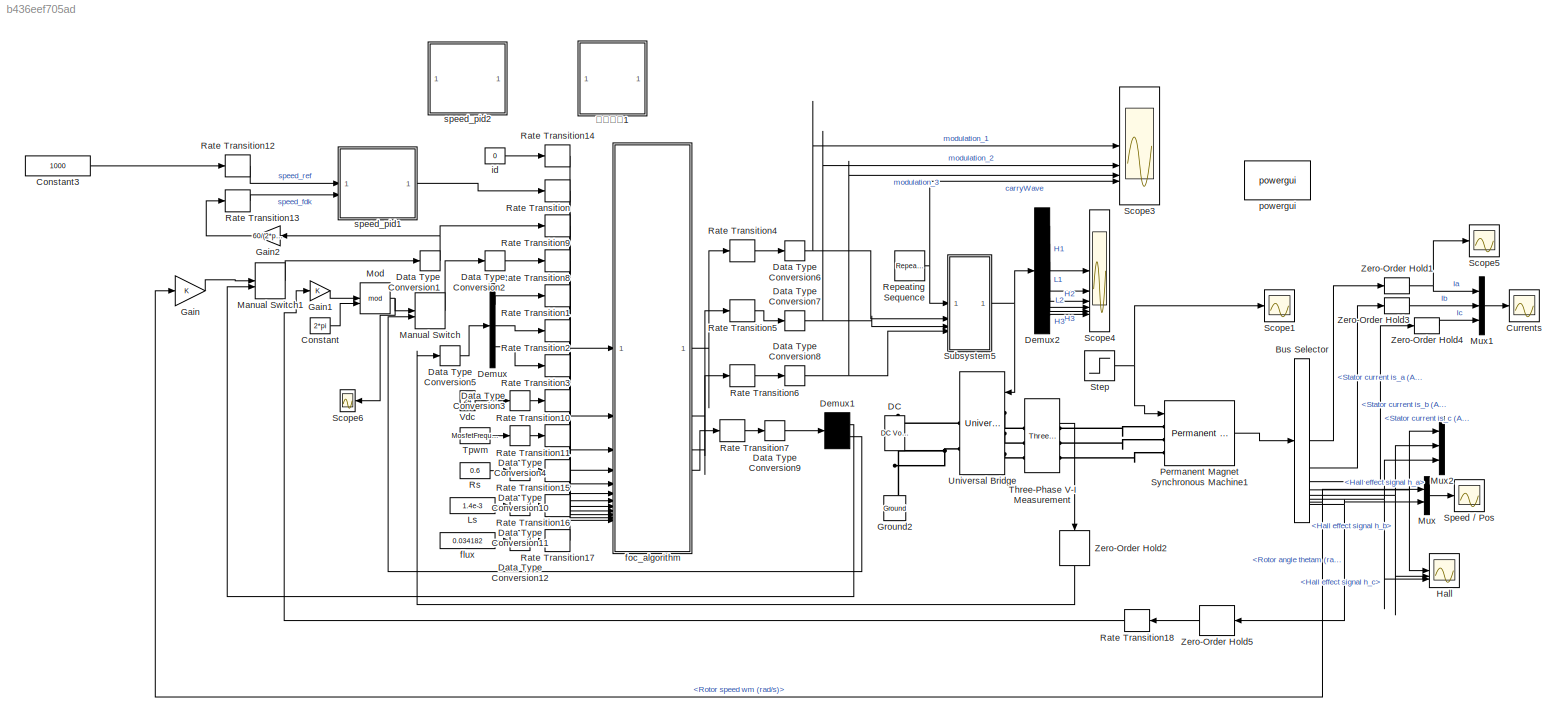
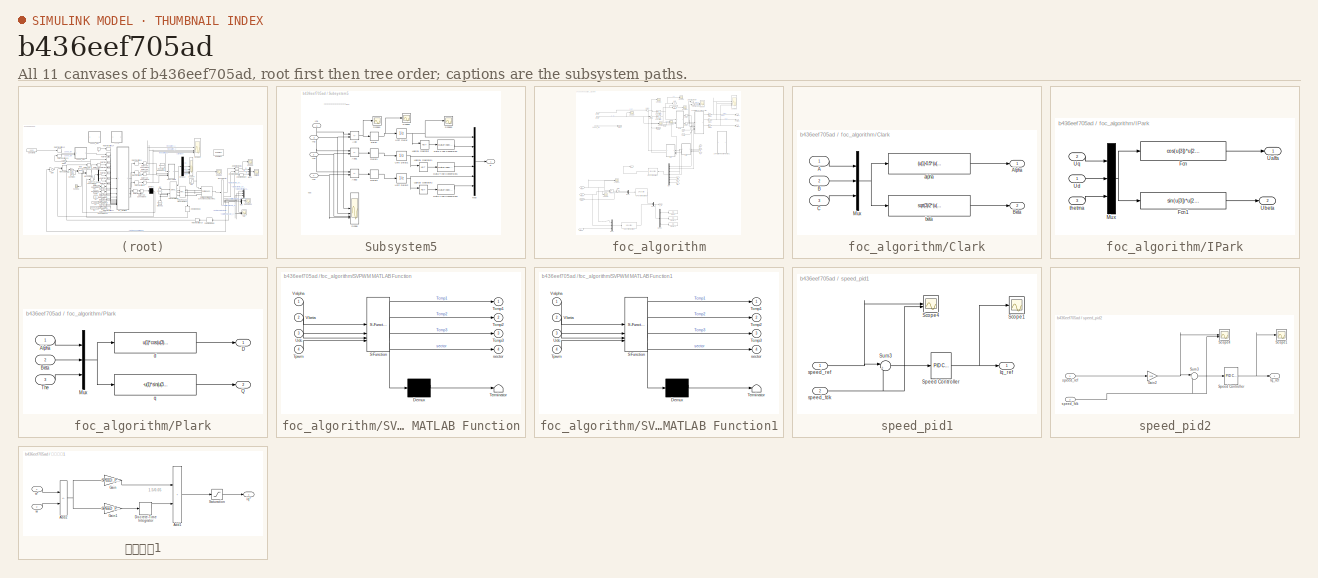
[diagram: thumbnail index - all 11 canvases of the model, root first then tree order]
MODEL slx_b436eef705ad
KIND model
CONFIG AbsTol = auto
CONFIG EnableMultiTasking = on
CONFIG FixedStep = 0.000001
CONFIG InitFcn = SPEED_PI_P=0.00006\nSPEED_PI_I=20\nSPEED_PI_UP_LIMIT = 2400.0\nSPEED_PI_LOW_LIMIT = -2400.0\nSPEED_PI_KB = 0.3\n\nD_PI_P = 10\nD_PI_I = 1200 \nD_PI_UP_LIMIT = 24.0\nD_PI_LOW_LIMIT = -24.0\nD_PI_KB = 0.5\n\n\nQ_PI_P = 15*1.0\nQ_PI_I = 2000*0.7\nQ_PI_UP_LIMIT = 24.0*3\nQ_PI_LOW_LIMIT = -24.0*3\nQ_PI_KB = 0.025\n\nMosfetFrequency=20e3\nTpwm_period=1/MosfetFrequency\nTpwm_max_count=2400
CONFIG MaxStep = auto
CONFIG MinStep = auto
CONFIG RelTol = 1e-3
CONFIG SampleTimeConstraint = Unconstrained
CONFIG SolverName = FixedStepDiscrete
CONFIG StartTime = 0.0
CONFIG StopTime = 1
BLOCK [BusSelector] Bus Selector
  OutputSignals = Stator current is_a (A),Stator current is_b (A),Stator current is_c (A),Hall effect signal h_a,Hall effect signal h_b,Hall effect signal h_c,Rotor speed wm (rad/s),Rotor angle thetam (rad)
BLOCK [Constant] Constant
  Value = 2*pi
BLOCK [Constant] Constant3
  OutDataTypeStr = single
  Value = 1000
BLOCK [Scope] Currents
  Floating = off
  NumInputPorts = 1
  ScopeSpecificationString = Simulink.scopes.TimeScopeBlockCfg('CurrentConfiguration', extmgr.ConfigurationSet(extmgr.Configuration('Core','General UI',true),extmgr.Configuration('Core','Source UI',true),extmgr.Configuration('Sources','WiredSimulink',true,'DataLoggingVariableName','ScopeData1','DataLoggingSaveFormat','StructureWithTime','DataLoggingDecimation','1','DataLoggingDecimateData',true,'DataLogging',true),extmgr.Conf...<+1839ch>
BLOCK [Reference] DC   REF=spsDCVoltageSourceLib/DC Voltage Source
  LibrarySourceBlock = sps_lib/Sources/DC Voltage Source
  NameLocation = right
  SourceBlock = spsDCVoltageSourceLib/DC Voltage Source
  SourceType = DC Voltage Source
BLOCK [DataTypeConversion] Data Type Conversion1
  OutDataTypeStr = single
  RndMeth = Floor
  SaturateOnIntegerOverflow = off
BLOCK [DataTypeConversion] Data Type Conversion10
  OutDataTypeStr = single
  RndMeth = Floor
  SaturateOnIntegerOverflow = off
BLOCK [DataTypeConversion] Data Type Conversion11
  OutDataTypeStr = single
  RndMeth = Floor
  SaturateOnIntegerOverflow = off
BLOCK [DataTypeConversion] Data Type Conversion12
  OutDataTypeStr = single
  RndMeth = Floor
  SaturateOnIntegerOverflow = off
BLOCK [DataTypeConversion] Data Type Conversion2
  OutDataTypeStr = single
  RndMeth = Floor
  SaturateOnIntegerOverflow = off
BLOCK [DataTypeConversion] Data Type Conversion3
  OutDataTypeStr = single
  RndMeth = Floor
  SaturateOnIntegerOverflow = off
BLOCK [DataTypeConversion] Data Type Conversion4
  OutDataTypeStr = single
  RndMeth = Floor
  SaturateOnIntegerOverflow = off
BLOCK [DataTypeConversion] Data Type Conversion5
  OutDataTypeStr = single
  RndMeth = Floor
  SaturateOnIntegerOverflow = off
BLOCK [DataTypeConversion] Data Type Conversion6
  OutDataTypeStr = double
  RndMeth = Floor
  SaturateOnIntegerOverflow = off
BLOCK [DataTypeConversion] Data Type Conversion7
  OutDataTypeStr = double
  RndMeth = Floor
  SaturateOnIntegerOverflow = off
BLOCK [DataTypeConversion] Data Type Conversion8
  OutDataTypeStr = double
  RndMeth = Floor
  SaturateOnIntegerOverflow = off
BLOCK [DataTypeConversion] Data Type Conversion9
  OutDataTypeStr = double
  RndMeth = Floor
  SaturateOnIntegerOverflow = off
BLOCK [Demux] Demux
  Outputs = 3
BLOCK [Demux] Demux1
  Outputs = 2
BLOCK [Demux] Demux2
  Outputs = 6
BLOCK [Gain] Gain
  OutDataTypeStr = double
BLOCK [Gain] Gain1
  OutDataTypeStr = double
BLOCK [Gain] Gain2
  Gain = 60/(2*pi)
  NameLocation = top
BLOCK [Reference] Ground2  REF=spsGroundLib/Ground
  LibrarySourceBlock = sps_lib/Utilities/Ground
  NameLocation = right
  SourceBlock = spsGroundLib/Ground
  SourceType = Ground
BLOCK [Scope] Hall
  Floating = off
  NumInputPorts = 3
  ScopeSpecificationString = Simulink.scopes.TimeScopeBlockCfg('CurrentConfiguration', extmgr.ConfigurationSet(extmgr.Configuration('Core','General UI',true),extmgr.Configuration('Core','Source UI',true),extmgr.Configuration('Sources','WiredSimulink',true,'DataLoggingVariableName','ScopeData2','DataLoggingSaveFormat','StructureWithTime','DataLoggingDecimation','1','DataLoggingDecimateData',true),extmgr.Configuration('Visuals'...<+2948ch>
BLOCK [Constant] Ls
  OutDataTypeStr = single
  Value = 1.4e-3
BLOCK [ManualSwitch] Manual Switch
BLOCK [ManualSwitch] Manual Switch1
BLOCK [Math] Mod
  Operator = mod
  SignedPower = on
BLOCK [Mux] Mux
  DisplayOption = bar
  Inputs = 2
BLOCK [Mux] Mux1
  DisplayOption = bar
  Inputs = 3
BLOCK [Mux] Mux2
  DisplayOption = bar
  Inputs = 3
BLOCK [Reference] Permanent Magnet Synchronous Machine1  REF=spsPermanentMagnetSynchronousMachineLib/Permanent Magnet
Synchronous Machine
  LibrarySourceBlock = sps_lib/Electrical Machines/Permanent Magnet\nSynchronous Machine
  SourceBlock = spsPermanentMagnetSynchronousMachineLib/Permanent Magnet\nSynchronous Machine
  SourceType = Permanent Magnet Synchronous Machine
BLOCK [RateTransition] Rate Transition
BLOCK [RateTransition] Rate Transition1
BLOCK [RateTransition] Rate Transition10
BLOCK [RateTransition] Rate Transition11
BLOCK [RateTransition] Rate Transition12
BLOCK [RateTransition] Rate Transition13
BLOCK [RateTransition] Rate Transition14
BLOCK [RateTransition] Rate Transition15
BLOCK [RateTransition] Rate Transition16
BLOCK [RateTransition] Rate Transition17
BLOCK [RateTransition] Rate Transition18
  NameLocation = top
BLOCK [RateTransition] Rate Transition2
BLOCK [RateTransition] Rate Transition3
BLOCK [RateTransition] Rate Transition4
BLOCK [RateTransition] Rate Transition5
BLOCK [RateTransition] Rate Transition6
BLOCK [RateTransition] Rate Transition7
BLOCK [RateTransition] Rate Transition8
BLOCK [RateTransition] Rate Transition9
BLOCK [Reference] Repeating Sequence  REF=simulink/Sources/Repeating
Sequence
  SourceBlock = simulink/Sources/Repeating\nSequence
  SourceType = Repeating table
BLOCK [Constant] Rs
  OutDataTypeStr = single
  Value = 0.6
BLOCK [Scope] Scope1
  Floating = off
  NumInputPorts = 1
  ScopeSpecificationString = Simulink.scopes.TimeScopeBlockCfg('CurrentConfiguration', extmgr.ConfigurationSet(extmgr.Configuration('Core','General UI',true),extmgr.Configuration('Core','Source UI',true),extmgr.Configuration('Sources','WiredSimulink',true,'DataLoggingVariableName','ScopeData2'),extmgr.Configuration('Visuals','Time Domain',true,'SerializedDisplays',{struct('MinYLimReal','-0.00002','MaxYLimReal','0.00017','YLab...<+1392ch>
BLOCK [Scope] Scope3
  Floating = off
  NumInputPorts = 4
  ScopeSpecificationString = Simulink.scopes.TimeScopeBlockCfg('CurrentConfiguration', extmgr.ConfigurationSet(extmgr.Configuration('Core','General UI',true),extmgr.Configuration('Core','Source UI',true),extmgr.Configuration('Sources','WiredSimulink',true,'DataLoggingVariableName','ScopeData1'),extmgr.Configuration('Visuals','Time Domain',true,'SerializedDisplays',{struct('MinYLimReal','124.9226','MaxYLimReal','1090.86687','Y...<+1714ch>
BLOCK [Scope] Scope4
  Floating = off
  NumInputPorts = 6
  ScopeSpecificationString = Simulink.scopes.TimeScopeBlockCfg('CurrentConfiguration', extmgr.ConfigurationSet(extmgr.Configuration('Core','General UI',true),extmgr.Configuration('Core','Source UI',true),extmgr.Configuration('Sources','WiredSimulink',true,'DataLoggingVariableName','ScopeData2'),extmgr.Configuration('Visuals','Time Domain',true,'SerializedDisplays',{struct('MinYLimReal','-0.125','MaxYLimReal','1.125','YLabelRe...<+5498ch>
BLOCK [Scope] Scope5
  Floating = off
  NumInputPorts = 1
  ScopeSpecificationString = Simulink.scopes.TimeScopeBlockCfg('CurrentConfiguration', extmgr.ConfigurationSet(extmgr.Configuration('Core','General UI',true),extmgr.Configuration('Core','Source UI',true),extmgr.Configuration('Sources','WiredSimulink',true,'DataLoggingVariableName','ScopeData3','DataLogging',true,'DataLoggingSaveFormat','StructureWithTime'),extmgr.Configuration('Visuals','Time Domain',true,'SerializedDisplays'...<+1597ch>
BLOCK [Scope] Scope6
  Floating = off
  NameLocation = top
  NumInputPorts = 1
  ScopeSpecificationString = Simulink.scopes.TimeScopeBlockCfg('CurrentConfiguration', extmgr.ConfigurationSet(extmgr.Configuration('Core','General UI',true),extmgr.Configuration('Core','Source UI',true),extmgr.Configuration('Sources','WiredSimulink',true,'DataLoggingVariableName','ScopeData5'),extmgr.Configuration('Visuals','Time Domain',true,'SerializedDisplays',{struct('MinYLimReal','-0.78539','MaxYLimReal','7.06855','YLab...<+1513ch>
BLOCK [Scope] Speed // Pos
  Floating = off
  NumInputPorts = 1
  ScopeSpecificationString = Simulink.scopes.TimeScopeBlockCfg('CurrentConfiguration', extmgr.ConfigurationSet(extmgr.Configuration('Core','General UI',true),extmgr.Configuration('Core','Source UI',true),extmgr.Configuration('Sources','WiredSimulink',true,'DataLoggingSaveFormat','StructureWithTime','DataLoggingDecimation','1','DataLoggingDecimateData',true),extmgr.Configuration('Visuals','Time Domain',true,'SerializedDisplays...<+1778ch>
BLOCK [Step] Step
  After = 0
  SampleTime = 0
  Time = 0
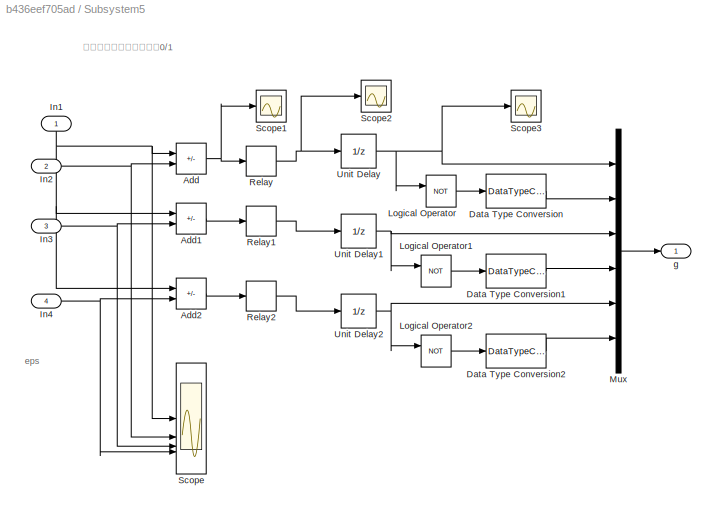
BLOCK [SubSystem] Subsystem5
BLOCK [Sum] Subsystem5/Add
  IconShape = rectangular
  Inputs = +-
BLOCK [Sum] Subsystem5/Add1
  IconShape = rectangular
  Inputs = +-
BLOCK [Sum] Subsystem5/Add2
  IconShape = rectangular
  Inputs = +-
BLOCK [DataTypeConversion] Subsystem5/Data Type Conversion
  OutDataTypeStr = double
  RndMeth = Floor
  SaturateOnIntegerOverflow = off
BLOCK [DataTypeConversion] Subsystem5/Data Type Conversion1
  OutDataTypeStr = double
  RndMeth = Floor
  SaturateOnIntegerOverflow = off
BLOCK [DataTypeConversion] Subsystem5/Data Type Conversion2
  OutDataTypeStr = double
  RndMeth = Floor
  SaturateOnIntegerOverflow = off
BLOCK [Inport] Subsystem5/In1
  NameLocation = right
BLOCK [Inport] Subsystem5/In2
  Port = 2
BLOCK [Inport] Subsystem5/In3
  Port = 3
BLOCK [Inport] Subsystem5/In4
  Port = 4
BLOCK [Logic] Subsystem5/Logical Operator
  AllPortsSameDT = off
  Operator = NOT
  OutDataTypeStr = boolean
BLOCK [Logic] Subsystem5/Logical Operator1
  AllPortsSameDT = off
  Operator = NOT
  OutDataTypeStr = boolean
BLOCK [Logic] Subsystem5/Logical Operator2
  AllPortsSameDT = off
  Operator = NOT
  OutDataTypeStr = boolean
BLOCK [Mux] Subsystem5/Mux
  DisplayOption = bar
  Inputs = 6
BLOCK [Relay] Subsystem5/Relay
  OffSwitchValue = -eps
BLOCK [Relay] Subsystem5/Relay1
  OffSwitchValue = -eps
BLOCK [Relay] Subsystem5/Relay2
  OffSwitchValue = -eps
BLOCK [Scope] Subsystem5/Scope
  Floating = off
  NumInputPorts = 4
  ScopeSpecificationString = Simulink.scopes.TimeScopeBlockCfg('CurrentConfiguration', extmgr.ConfigurationSet(extmgr.Configuration('Core','General UI',true),extmgr.Configuration('Core','Source UI',true),extmgr.Configuration('Sources','WiredSimulink',true,'DataLoggingVariableName','ScopeData3'),extmgr.Configuration('Visuals','Time Domain',true,'SerializedDisplays',{struct('MinYLimReal','-1125.00000','MaxYLimReal','10125.00000...<+1963ch>
BLOCK [Scope] Subsystem5/Scope1
  Floating = off
  NumInputPorts = 1
  ScopeSpecificationString = Simulink.scopes.TimeScopeBlockCfg('CurrentConfiguration', extmgr.ConfigurationSet(extmgr.Configuration('Core','General UI',true),extmgr.Configuration('Core','Source UI',true),extmgr.Configuration('Sources','WiredSimulink',true,'DataLoggingVariableName','ScopeData5'),extmgr.Configuration('Visuals','Time Domain',true,'SerializedDisplays',{struct('MinYLimReal','-7920.87396','MaxYLimReal','10880.09711...<+1584ch>
BLOCK [Scope] Subsystem5/Scope2
  Floating = off
  NumInputPorts = 1
  ScopeSpecificationString = Simulink.scopes.TimeScopeBlockCfg('CurrentConfiguration', extmgr.ConfigurationSet(extmgr.Configuration('Core','General UI',true),extmgr.Configuration('Core','Source UI',true),extmgr.Configuration('Sources','WiredSimulink',true,'DataLoggingVariableName','ScopeData6'),extmgr.Configuration('Visuals','Time Domain',true,'SerializedDisplays',{struct('MinYLimReal','-0.125','MaxYLimReal','1.125','YLabelRe...<+1517ch>
BLOCK [Scope] Subsystem5/Scope3
  Floating = off
  NumInputPorts = 1
  ScopeSpecificationString = Simulink.scopes.TimeScopeBlockCfg('CurrentConfiguration', extmgr.ConfigurationSet(extmgr.Configuration('Core','General UI',true),extmgr.Configuration('Core','Source UI',true),extmgr.Configuration('Sources','WiredSimulink',true,'DataLoggingVariableName','ScopeData7'),extmgr.Configuration('Visuals','Time Domain',true),extmgr.Configuration('Tools','Plot Navigation',true),extmgr.Configuration('Tools',...<+40ch>
BLOCK [UnitDelay] Subsystem5/Unit Delay
  HasFrameUpgradeWarning = on
  SampleTime = -1
BLOCK [UnitDelay] Subsystem5/Unit Delay1
  HasFrameUpgradeWarning = on
  SampleTime = -1
BLOCK [UnitDelay] Subsystem5/Unit Delay2
  HasFrameUpgradeWarning = on
  SampleTime = -1
BLOCK [Outport] Subsystem5/g
  VectorParamsAs1DForOutWhenUnconnected = off
BLOCK [Reference] Three-Phase V-I Measurement  REF=spsThreePhaseVIMeasurementLib/Three-Phase
V-I Measurement
  LibrarySourceBlock = sps_lib/Sensors and Measurements/Three-Phase\nV-I Measurement
  SourceBlock = spsThreePhaseVIMeasurementLib/Three-Phase\nV-I Measurement
  SourceType = Three-Phase VI Measurement
BLOCK [Constant] Tpwm
  Value = MosfetFrequency
BLOCK [Reference] Universal Bridge  REF=spsUniversalBridgeLib/Universal Bridge
  LibrarySourceBlock = sps_lib/Power Electronics/Universal Bridge
  NameLocation = top
  SourceBlock = spsUniversalBridgeLib/Universal Bridge
  SourceType = Universal Bridge
BLOCK [Constant] Vdc
  Value = 24
BLOCK [ZeroOrderHold] Zero-Order Hold1
  SampleTime = Tpwm_period
BLOCK [ZeroOrderHold] Zero-Order Hold2
  NameLocation = left
  SampleTime = Tpwm_period
BLOCK [ZeroOrderHold] Zero-Order Hold3
  SampleTime = Tpwm_period
BLOCK [ZeroOrderHold] Zero-Order Hold4
  SampleTime = Tpwm_period
BLOCK [ZeroOrderHold] Zero-Order Hold5
  NameLocation = top
  SampleTime = Tpwm_period
BLOCK [Constant] flux
  OutDataTypeStr = single
  Value = 0.034182
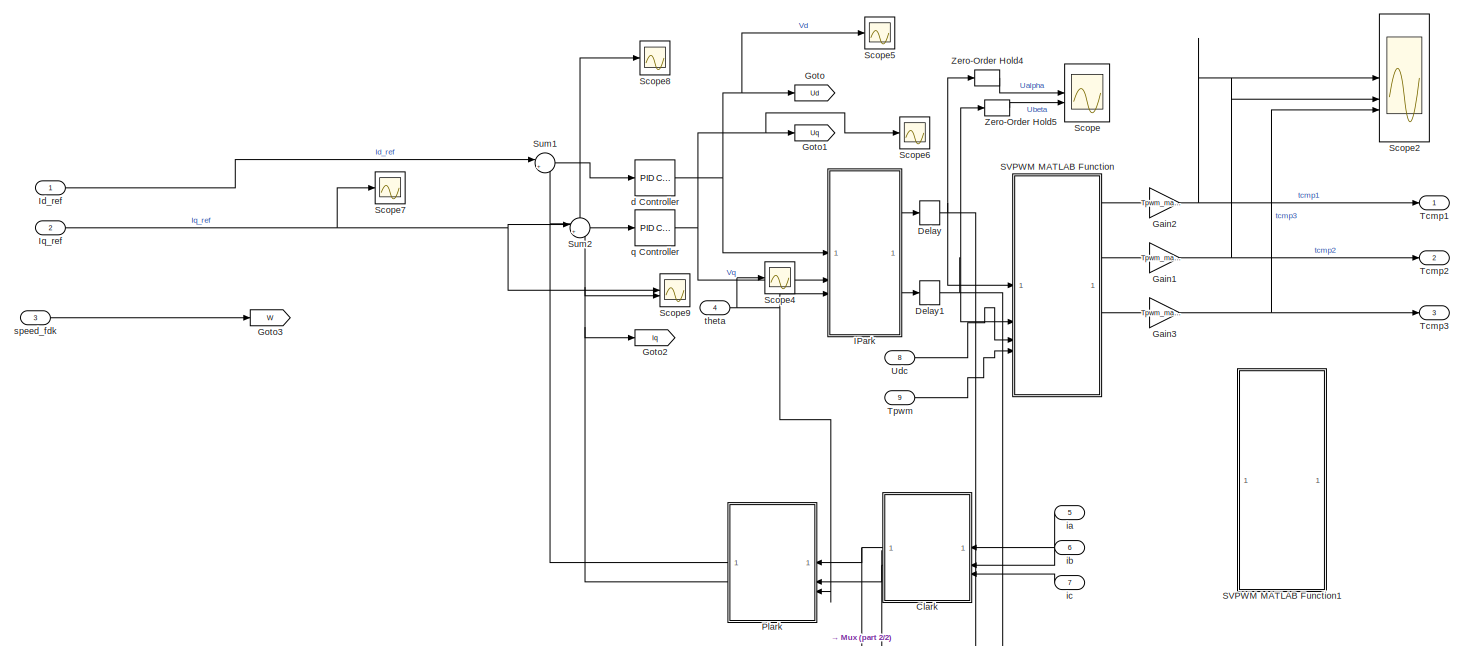
[diagram: foc_algorithm - part 1/2, full width, top band]
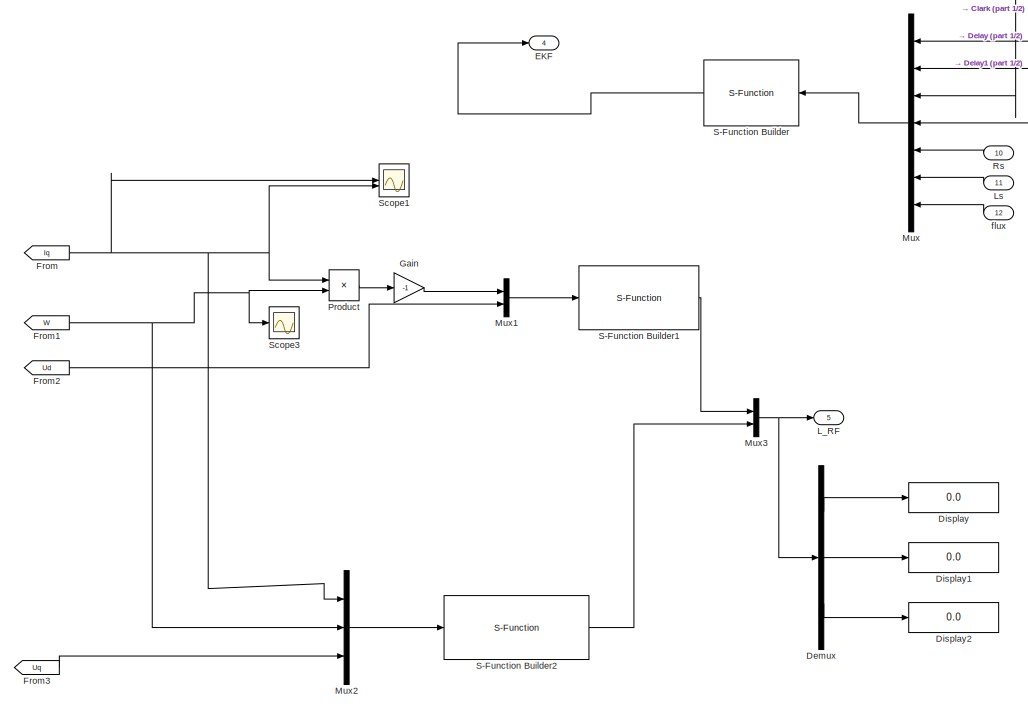
[diagram: foc_algorithm - part 2/2, bottom left region]
BLOCK [SubSystem] foc_algorithm
  SystemSampleTime = Tpwm_period
  TreatAsAtomicUnit = on
BLOCK [SubSystem] foc_algorithm/Clark
BLOCK [Inport] foc_algorithm/Clark/A
BLOCK [Outport] foc_algorithm/Clark/Alpha
  VectorParamsAs1DForOutWhenUnconnected = off
BLOCK [Inport] foc_algorithm/Clark/B
  Port = 2
BLOCK [Outport] foc_algorithm/Clark/Beta
  Port = 2
  VectorParamsAs1DForOutWhenUnconnected = off
BLOCK [Inport] foc_algorithm/Clark/C
  Port = 3
BLOCK [Mux] foc_algorithm/Clark/Mux
  DisplayOption = bar
  Inputs = 3
BLOCK [Fcn] foc_algorithm/Clark/alpha
  Expr = (u(1)-0.5*(u(2)+u(3)))*2/3
BLOCK [Fcn] foc_algorithm/Clark/beta
  Expr = sqrt(3)/2*(u(2)-u(3))*2/3
BLOCK [Delay] foc_algorithm/Delay
  DelayLength = 1
  InputPortMap = u0
BLOCK [Delay] foc_algorithm/Delay1
  DelayLength = 1
  InputPortMap = u0
BLOCK [Demux] foc_algorithm/Demux
  Outputs = 3
BLOCK [Display] foc_algorithm/Display
  Decimation = 1
BLOCK [Display] foc_algorithm/Display1
  Decimation = 1
BLOCK [Display] foc_algorithm/Display2
  Decimation = 1
BLOCK [Outport] foc_algorithm/EKF
  Port = 4
  VectorParamsAs1DForOutWhenUnconnected = off
BLOCK [From] foc_algorithm/From
  GotoTag = Iq
BLOCK [From] foc_algorithm/From1
  GotoTag = W
BLOCK [From] foc_algorithm/From2
  GotoTag = Ud
BLOCK [From] foc_algorithm/From3
  GotoTag = Uq
BLOCK [Gain] foc_algorithm/Gain
  Gain = -1
BLOCK [Gain] foc_algorithm/Gain1
  Gain = Tpwm_max_count
BLOCK [Gain] foc_algorithm/Gain2
  Gain = Tpwm_max_count
BLOCK [Gain] foc_algorithm/Gain3
  Gain = Tpwm_max_count
BLOCK [Goto] foc_algorithm/Goto
  GotoTag = Ud
BLOCK [Goto] foc_algorithm/Goto1
  GotoTag = Uq
BLOCK [Goto] foc_algorithm/Goto2
  GotoTag = Iq
BLOCK [Goto] foc_algorithm/Goto3
  GotoTag = W
BLOCK [SubSystem] foc_algorithm/IPark
BLOCK [Fcn] foc_algorithm/IPark/Fcn
  Expr = cos(u[3])*u[2]-sin(u[3])*u[1]
BLOCK [Fcn] foc_algorithm/IPark/Fcn1
  Expr = sin(u[3])*u[2]+cos(u[3])*u[1]
BLOCK [Mux] foc_algorithm/IPark/Mux
  DisplayOption = bar
  Inputs = 3
BLOCK [Outport] foc_algorithm/IPark/Ualfa
  VectorParamsAs1DForOutWhenUnconnected = off
BLOCK [Outport] foc_algorithm/IPark/Ubeta
  Port = 2
  VectorParamsAs1DForOutWhenUnconnected = off
BLOCK [Inport] foc_algorithm/IPark/Ud
BLOCK [Inport] foc_algorithm/IPark/Uq
  Port = 2
BLOCK [Inport] foc_algorithm/IPark/thetma
  Port = 3
BLOCK [Inport] foc_algorithm/Id_ref
BLOCK [Inport] foc_algorithm/Iq_ref
  Port = 2
BLOCK [Outport] foc_algorithm/L_RF
  Port = 5
  VectorParamsAs1DForOutWhenUnconnected = off
BLOCK [Inport] foc_algorithm/Ls
  Port = 11
BLOCK [Mux] foc_algorithm/Mux
  DisplayOption = bar
  Inputs = 7
BLOCK [Mux] foc_algorithm/Mux1
  DisplayOption = bar
  Inputs = 2
BLOCK [Mux] foc_algorithm/Mux2
  DisplayOption = bar
  Inputs = 3
BLOCK [Mux] foc_algorithm/Mux3
  DisplayOption = bar
  Inputs = 2
BLOCK [SubSystem] foc_algorithm/Plark
BLOCK [Inport] foc_algorithm/Plark/Alpha
BLOCK [Inport] foc_algorithm/Plark/Beta
  Port = 2
BLOCK [Outport] foc_algorithm/Plark/D
  VectorParamsAs1DForOutWhenUnconnected = off
BLOCK [Mux] foc_algorithm/Plark/Mux
  DisplayOption = bar
  Inputs = 3
BLOCK [Outport] foc_algorithm/Plark/Q
  Port = 2
  VectorParamsAs1DForOutWhenUnconnected = off
BLOCK [Inport] foc_algorithm/Plark/The
  Port = 3
BLOCK [Fcn] foc_algorithm/Plark/d
  Expr = u(1)*cos(u(3))+u(2)*sin(u(3))
BLOCK [Fcn] foc_algorithm/Plark/q
  Expr = -u(1)*sin(u(3))+u(2)*cos(u(3))
BLOCK [Product] foc_algorithm/Product
BLOCK [Inport] foc_algorithm/Rs
  Port = 10
BLOCK [S-Function] foc_algorithm/S-Function Builder
  CopyFcn = set_param(gcbh,'LinkStatus','none')
  EnableBusSupport = off
  FunctionName = stm32_ekf
  InitFcn = try, set_param(gcb,'FunctionName','stm32_ekf'), end
  OpenFcn = sfunctionwizard(gcbh)
  PreSaveFcn = try, set_param(gcb,'FunctionName','stm32_ekf'), end
  SFcnIsStateOwnerBlock = off
  SFunctionDeploymentMode = off
  SFunctionModules = stm32_ekf_wrapper
BLOCK [S-Function] foc_algorithm/S-Function Builder1
  CopyFcn = set_param(gcbh,'LinkStatus','none')
  EnableBusSupport = off
  FunctionName = L_identification
  InitFcn = try, set_param(gcb,'FunctionName','L_identification'), end
  OpenFcn = sfunctionwizard(gcbh)
  PreSaveFcn = try, set_param(gcb,'FunctionName','L_identification'), end
  SFcnIsStateOwnerBlock = off
  SFunctionDeploymentMode = off
  SFunctionModules = L_identification_wrapper
BLOCK [S-Function] foc_algorithm/S-Function Builder2
  CopyFcn = set_param(gcbh,'LinkStatus','none')
  EnableBusSupport = off
  FunctionName = R_flux_identification
  InitFcn = try, set_param(gcb,'FunctionName','R_flux_identification'), end
  OpenFcn = sfunctionwizard(gcbh)
  PreSaveFcn = try, set_param(gcb,'FunctionName','R_flux_identification'), end
  SFcnIsStateOwnerBlock = off
  SFunctionDeploymentMode = off
  SFunctionModules = R_flux_identification_wrapper
BLOCK [SubSystem] foc_algorithm/SVPWM MATLAB Function
  ErrorFcn = Stateflow.Translate.translate
  PermitHierarchicalResolution = ExplicitOnly
  SFBlockType = MATLAB Function
  TreatAsAtomicUnit = on
BLOCK [Demux] foc_algorithm/SVPWM MATLAB Function/ Demux 
  Outputs = 1
BLOCK [S-Function] foc_algorithm/SVPWM MATLAB Function/ SFunction 
  EnableBusSupport = on
  FunctionName = sf_sfun
  PortCounts = [4 5]
  SFcnIsStateOwnerBlock = off
  SFunctionDeploymentMode = off
  Tag = Stateflow S-Function 2
BLOCK [Terminator] foc_algorithm/SVPWM MATLAB Function/ Terminator 
BLOCK [Outport] foc_algorithm/SVPWM MATLAB Function/Tcmp1
  VectorParamsAs1DForOutWhenUnconnected = off
BLOCK [Outport] foc_algorithm/SVPWM MATLAB Function/Tcmp2
  Port = 2
  VectorParamsAs1DForOutWhenUnconnected = off
BLOCK [Outport] foc_algorithm/SVPWM MATLAB Function/Tcmp3
  Port = 3
  VectorParamsAs1DForOutWhenUnconnected = off
BLOCK [Inport] foc_algorithm/SVPWM MATLAB Function/Tpwm
  Port = 4
BLOCK [Inport] foc_algorithm/SVPWM MATLAB Function/Udc
  Port = 3
BLOCK [Inport] foc_algorithm/SVPWM MATLAB Function/Valpha
BLOCK [Inport] foc_algorithm/SVPWM MATLAB Function/Vbeta
  Port = 2
BLOCK [Outport] foc_algorithm/SVPWM MATLAB Function/sector
  Port = 4
  VectorParamsAs1DForOutWhenUnconnected = off
BLOCK [SubSystem] foc_algorithm/SVPWM MATLAB Function1
  Commented = on
  ErrorFcn = Stateflow.Translate.translate
  PermitHierarchicalResolution = ExplicitOnly
  SFBlockType = MATLAB Function
  TreatAsAtomicUnit = on
BLOCK [Demux] foc_algorithm/SVPWM MATLAB Function1/ Demux 
  Outputs = 1
BLOCK [S-Function] foc_algorithm/SVPWM MATLAB Function1/ SFunction 
  EnableBusSupport = on
  FunctionName = sf_sfun
  PortCounts = [4 5]
  SFcnIsStateOwnerBlock = off
  SFunctionDeploymentMode = off
  Tag = Stateflow S-Function 1
BLOCK [Terminator] foc_algorithm/SVPWM MATLAB Function1/ Terminator 
BLOCK [Outport] foc_algorithm/SVPWM MATLAB Function1/Tcmp1
  VectorParamsAs1DForOutWhenUnconnected = off
BLOCK [Outport] foc_algorithm/SVPWM MATLAB Function1/Tcmp2
  Port = 2
  VectorParamsAs1DForOutWhenUnconnected = off
BLOCK [Outport] foc_algorithm/SVPWM MATLAB Function1/Tcmp3
  Port = 3
  VectorParamsAs1DForOutWhenUnconnected = off
BLOCK [Inport] foc_algorithm/SVPWM MATLAB Function1/Tpwm
  Port = 4
BLOCK [Inport] foc_algorithm/SVPWM MATLAB Function1/Udc
  Port = 3
BLOCK [Inport] foc_algorithm/SVPWM MATLAB Function1/Valpha
BLOCK [Inport] foc_algorithm/SVPWM MATLAB Function1/Vbeta
  Port = 2
BLOCK [Outport] foc_algorithm/SVPWM MATLAB Function1/sector
  Port = 4
  VectorParamsAs1DForOutWhenUnconnected = off
BLOCK [Scope] foc_algorithm/Scope
  Floating = off
  NumInputPorts = 2
  ScopeSpecificationString = Simulink.scopes.TimeScopeBlockCfg('CurrentConfiguration', extmgr.ConfigurationSet(extmgr.Configuration('Core','General UI',true),extmgr.Configuration('Core','Source UI',true),extmgr.Configuration('Sources','WiredSimulink',true,'DataLoggingVariableName','ScopeData1'),extmgr.Configuration('Visuals','Time Domain',true,'SerializedDisplays',{struct('MinYLimReal','-11.64443','MaxYLimReal','11.43994','YL...<+1577ch>
BLOCK [Scope] foc_algorithm/Scope1
  Floating = off
  NumInputPorts = 2
  ScopeSpecificationString = Simulink.scopes.TimeScopeBlockCfg('CurrentConfiguration', extmgr.ConfigurationSet(extmgr.Configuration('Core','General UI',true),extmgr.Configuration('Core','Source UI',true),extmgr.Configuration('Sources','WiredSimulink',true,'DataLoggingVariableName','ScopeData3'),extmgr.Configuration('Visuals','Time Domain',true,'SerializedDisplays',{struct('MinYLimReal','-0.25336','MaxYLimReal','2.28027','YLab...<+1474ch>
BLOCK [Scope] foc_algorithm/Scope2
  Floating = off
  NumInputPorts = 3
  ScopeSpecificationString = Simulink.scopes.TimeScopeBlockCfg('CurrentConfiguration', extmgr.ConfigurationSet(extmgr.Configuration('Core','General UI',true),extmgr.Configuration('Core','Source UI',true),extmgr.Configuration('Sources','WiredSimulink',true,'DataLoggingVariableName','ScopeData2'),extmgr.Configuration('Visuals','Time Domain',true,'SerializedDisplays',{struct('MinYLimReal','-120.90649','MaxYLimReal','1088.15838',...<+1590ch>
BLOCK [Scope] foc_algorithm/Scope3
  Floating = off
  NumInputPorts = 1
  ScopeSpecificationString = Simulink.scopes.TimeScopeBlockCfg('CurrentConfiguration', extmgr.ConfigurationSet(extmgr.Configuration('Core','General UI',true),extmgr.Configuration('Core','Source UI',true),extmgr.Configuration('Sources','WiredSimulink',true,'DataLoggingVariableName','ScopeData5'),extmgr.Configuration('Visuals','Time Domain',true,'SerializedDisplays',{struct('MinYLimReal','-36.72144','MaxYLimReal','330.47807','Y...<+1474ch>
BLOCK [Scope] foc_algorithm/Scope4
  Floating = off
  NumInputPorts = 1
  ScopeSpecificationString = Simulink.scopes.TimeScopeBlockCfg('CurrentConfiguration', extmgr.ConfigurationSet(extmgr.Configuration('Core','General UI',true),extmgr.Configuration('Core','Source UI',true),extmgr.Configuration('Sources','WiredSimulink',true,'DataLoggingVariableName','ScopeData4'),extmgr.Configuration('Visuals','Time Domain',true,'SerializedDisplays',{struct('MinYLimReal','-0.78535','MaxYLimReal','7.06818','YLab...<+1559ch>
BLOCK [Scope] foc_algorithm/Scope5
  Floating = off
  NumInputPorts = 1
  ScopeSpecificationString = Simulink.scopes.TimeScopeBlockCfg('CurrentConfiguration', extmgr.ConfigurationSet(extmgr.Configuration('Core','General UI',true),extmgr.Configuration('Core','Source UI',true),extmgr.Configuration('Sources','WiredSimulink',true,'DataLoggingVariableName','ScopeData2'),extmgr.Configuration('Visuals','Time Domain',true,'SerializedDisplays',{struct('MinYLimReal','-0.34899','MaxYLimReal','0.30199','YLab...<+1361ch>
BLOCK [Scope] foc_algorithm/Scope6
  Floating = off
  NumInputPorts = 1
  ScopeSpecificationString = Simulink.scopes.TimeScopeBlockCfg('CurrentConfiguration', extmgr.ConfigurationSet(extmgr.Configuration('Core','General UI',true),extmgr.Configuration('Core','Source UI',true),extmgr.Configuration('Sources','WiredSimulink',true,'DataLoggingVariableName','ScopeData3'),extmgr.Configuration('Visuals','Time Domain',true,'SerializedDisplays',{struct('MinYLimReal','-0.18278','MaxYLimReal','1.64506','YLab...<+1361ch>
BLOCK [Scope] foc_algorithm/Scope7
  Floating = off
  NumInputPorts = 1
  ScopeSpecificationString = Simulink.scopes.TimeScopeBlockCfg('CurrentConfiguration', extmgr.ConfigurationSet(extmgr.Configuration('Core','General UI',true),extmgr.Configuration('Core','Source UI',true),extmgr.Configuration('Sources','WiredSimulink',true,'DataLoggingVariableName','ScopeData4'),extmgr.Configuration('Visuals','Time Domain',true,'SerializedDisplays',{struct('MinYLimReal','-0.05592','MaxYLimReal','0.50329','YLab...<+1390ch>
BLOCK [Scope] foc_algorithm/Scope8
  Floating = off
  NumInputPorts = 1
  ScopeSpecificationString = Simulink.scopes.TimeScopeBlockCfg('CurrentConfiguration', extmgr.ConfigurationSet(extmgr.Configuration('Core','General UI',true),extmgr.Configuration('Core','Source UI',true),extmgr.Configuration('Sources','WiredSimulink',true,'DataLoggingVariableName','ScopeData5'),extmgr.Configuration('Visuals','Time Domain',true,'SerializedDisplays',{struct('MinYLimReal','-0.07244','MaxYLimReal','0.0677','YLabe...<+1539ch>
BLOCK [Scope] foc_algorithm/Scope9
  Floating = off
  NumInputPorts = 2
  ScopeSpecificationString = Simulink.scopes.TimeScopeBlockCfg('CurrentConfiguration', extmgr.ConfigurationSet(extmgr.Configuration('Core','General UI',true),extmgr.Configuration('Core','Source UI',true),extmgr.Configuration('Sources','WiredSimulink',true,'DataLoggingVariableName','ScopeData6'),extmgr.Configuration('Visuals','Time Domain',true,'SerializedDisplays',{struct('MinYLimReal','-0.08871','MaxYLimReal','0.79809','YLab...<+1614ch>
BLOCK [Sum] foc_algorithm/Sum1
  Inputs = |+-
BLOCK [Sum] foc_algorithm/Sum2
  Inputs = |+-
BLOCK [Outport] foc_algorithm/Tcmp1
  VectorParamsAs1DForOutWhenUnconnected = off
BLOCK [Outport] foc_algorithm/Tcmp2
  Port = 2
  VectorParamsAs1DForOutWhenUnconnected = off
BLOCK [Outport] foc_algorithm/Tcmp3
  Port = 3
  VectorParamsAs1DForOutWhenUnconnected = off
BLOCK [Inport] foc_algorithm/Tpwm
  Port = 9
BLOCK [Inport] foc_algorithm/Udc
  Port = 8
BLOCK [ZeroOrderHold] foc_algorithm/Zero-Order Hold4
  SampleTime = Tpwm_period
BLOCK [ZeroOrderHold] foc_algorithm/Zero-Order Hold5
  SampleTime = Tpwm_period
BLOCK [Reference] foc_algorithm/d Controller  REF=slpidlib/PID Controller
  NameLocation = top
  SourceBlock = slpidlib/PID Controller
  SourceType = PID 1dof
BLOCK [Inport] foc_algorithm/flux
  Port = 12
BLOCK [Inport] foc_algorithm/ia
  Port = 5
BLOCK [Inport] foc_algorithm/ib
  Port = 6
BLOCK [Inport] foc_algorithm/ic
  Port = 7
BLOCK [Reference] foc_algorithm/q Controller  REF=slpidlib/PID Controller
  SourceBlock = slpidlib/PID Controller
  SourceType = PID 1dof
BLOCK [Inport] foc_algorithm/speed_fdk
  Port = 3
BLOCK [Inport] foc_algorithm/theta
  Port = 4
BLOCK [Constant] id
  OutDataTypeStr = single
  Value = 0
BLOCK [Reference] powergui  REF=sps_lib/powergui
  LibrarySourceBlock = sps_lib/powergui
  Priority = 1
  SourceBlock = sps_lib/powergui
  SourceType = PSB option menu block
BLOCK [SubSystem] speed_pid1
  SystemSampleTime = 0.001
  TreatAsAtomicUnit = on
BLOCK [Outport] speed_pid1/Iq_ref
  VectorParamsAs1DForOutWhenUnconnected = off
BLOCK [Scope] speed_pid1/Scope1
  Floating = off
  NumInputPorts = 1
  ScopeSpecificationString = Simulink.scopes.TimeScopeBlockCfg('CurrentConfiguration', extmgr.ConfigurationSet(extmgr.Configuration('Core','General UI',true),extmgr.Configuration('Core','Source UI',true),extmgr.Configuration('Sources','WiredSimulink',true,'DataLoggingVariableName','ScopeData1'),extmgr.Configuration('Visuals','Time Domain',true,'SerializedDisplays',{struct('MinYLimReal','-0.08036','MaxYLimReal','0.72321','YLab...<+1584ch>
BLOCK [Scope] speed_pid1/Scope4
  Floating = off
  NumInputPorts = 2
  ScopeSpecificationString = Simulink.scopes.TimeScopeBlockCfg('CurrentConfiguration', extmgr.ConfigurationSet(extmgr.Configuration('Core','General UI',true),extmgr.Configuration('Core','Source UI',true),extmgr.Configuration('Sources','WiredSimulink',true,'DataLoggingVariableName','ScopeData1'),extmgr.Configuration('Visuals','Time Domain',true,'SerializedDisplays',{struct('MinYLimReal','-125.28239','MaxYLimReal','1127.54155',...<+1620ch>
BLOCK [Reference] speed_pid1/Speed Controller  REF=slpidlib/PID Controller
  SourceBlock = slpidlib/PID Controller
  SourceType = PID 1dof
BLOCK [Sum] speed_pid1/Sum3
  InputSameDT = on
  Inputs = |+-
BLOCK [Inport] speed_pid1/speed_fdk
  Port = 2
BLOCK [Inport] speed_pid1/speed_ref
BLOCK [SubSystem] speed_pid2
  Commented = on
  SystemSampleTime = 0.001
  TreatAsAtomicUnit = on
BLOCK [Gain] speed_pid2/Gain2
  Gain = 2*pi
  OutDataTypeStr = single
BLOCK [Outport] speed_pid2/Iq_ref
  VectorParamsAs1DForOutWhenUnconnected = off
BLOCK [Scope] speed_pid2/Scope1
  Floating = off
  NumInputPorts = 2
  ScopeSpecificationString = Simulink.scopes.TimeScopeBlockCfg('CurrentConfiguration', extmgr.ConfigurationSet(extmgr.Configuration('Core','General UI',true),extmgr.Configuration('Core','Source UI',true),extmgr.Configuration('Sources','WiredSimulink',true,'DataLoggingVariableName','ScopeData1'),extmgr.Configuration('Visuals','Time Domain',true,'SerializedDisplays',{struct('MinYLimReal','-0.08036','MaxYLimReal','0.72321','YLab...<+1584ch>
BLOCK [Scope] speed_pid2/Scope4
  Floating = off
  NumInputPorts = 2
  ScopeSpecificationString = Simulink.scopes.TimeScopeBlockCfg('CurrentConfiguration', extmgr.ConfigurationSet(extmgr.Configuration('Core','General UI',true),extmgr.Configuration('Core','Source UI',true),extmgr.Configuration('Sources','WiredSimulink',true,'DataLoggingVariableName','ScopeData1'),extmgr.Configuration('Visuals','Time Domain',true,'SerializedDisplays',{struct('MinYLimReal','-15.70796','MaxYLimReal','141.37168','Y...<+1559ch>
BLOCK [Reference] speed_pid2/Speed Controller  REF=slpidlib/PID Controller
  SourceBlock = slpidlib/PID Controller
  SourceType = PID 1dof
BLOCK [Sum] speed_pid2/Sum3
  InputSameDT = on
  Inputs = |+-
BLOCK [Inport] speed_pid2/speed_fdk
  Port = 2
BLOCK [Inport] speed_pid2/speed_ref
BLOCK [SubSystem] 转速调节1
  Commented = on
  SystemSampleTime = 100e-3
  TreatAsAtomicUnit = on
BLOCK [Sum] 转速调节1/Add1
  IconShape = rectangular
BLOCK [Sum] 转速调节1/Add2
  IconShape = rectangular
  Inputs = +-
BLOCK [DiscreteIntegrator] 转速调节1/Discrete-Time Integrator
  ICPrevOutput = DiscIntNeverNeededParam
  ICPrevScaledInput = DiscIntNeverNeededParam
  LimitOutput = on
  LowerSaturationLimit = -Q_PI_UP_LIMIT
  SampleTime = 100e-3
  UpperSaturationLimit = Q_PI_UP_LIMIT
BLOCK [Gain] 转速调节1/Gain
  Gain = SPEED_PI_P
BLOCK [Gain] 转速调节1/Gain1
  Gain = SPEED_PI_I
BLOCK [Saturate] 转速调节1/Saturation
  LowerLimit = -Q_PI_UP_LIMIT
  UpperLimit = Q_PI_UP_LIMIT
BLOCK [Outport] 转速调节1/iq* 
  VectorParamsAs1DForOutWhenUnconnected = off
BLOCK [Inport] 转速调节1/w
  Port = 2
BLOCK [Inport] 转速调节1/w*
ANNOTATION Subsystem5: eps
ANNOTATION Subsystem5: 比较两个数的大小，输出0/1
ANNOTATION 转速调节1: 1.5/0.05
LINE Bus Selector:1 -> Zero-Order Hold1:1
LINE Bus Selector:2 -> Zero-Order Hold3:1
LINE Bus Selector:3 -> Zero-Order Hold4:1
NET Bus Selector:4 -> Hall:1, Mux2:1
NET Bus Selector:5 -> Hall:2, Mux2:2
NET Bus Selector:6 -> Hall:3, Mux2:3
NET Bus Selector:7 -> Gain:1, Mux:1
NET Bus Selector:8 -> Mux:2, Zero-Order Hold5:1
LINE Constant3:1 -> Rate Transition12:1
LINE Constant:1 -> Mod:2
LINE Data Type Conversion10:1 -> Rate Transition15:1
LINE Data Type Conversion11:1 -> Rate Transition16:1
LINE Data Type Conversion12:1 -> Rate Transition17:1
NET Data Type Conversion1:1 -> Gain2:1, Rate Transition9:1
LINE Data Type Conversion2:1 -> Rate Transition8:1
LINE Data Type Conversion3:1 -> Rate Transition10:1
LINE Data Type Conversion4:1 -> Rate Transition11:1
LINE Data Type Conversion5:1 -> Demux:1
NET Data Type Conversion6:1 -> Scope3:1, Subsystem5:2
NET Data Type Conversion7:1 -> Scope3:2, Subsystem5:3
NET Data Type Conversion8:1 -> Scope3:3, Subsystem5:4
LINE Data Type Conversion9:1 -> Demux1:1
LINE Demux1:1 -> Manual Switch1:2
LINE Demux1:2 -> Manual Switch:2
LINE Demux2:1 -> Scope4:1
LINE Demux2:2 -> Scope4:2
LINE Demux2:3 -> Scope4:3
LINE Demux2:4 -> Scope4:4
LINE Demux2:5 -> Scope4:5
LINE Demux2:6 -> Scope4:6
LINE Demux:1 -> Rate Transition1:1
LINE Demux:2 -> Rate Transition2:1
LINE Demux:3 -> Rate Transition3:1
LINE Gain1:1 -> Mod:1
LINE Gain2:1 -> Rate Transition13:1
LINE Gain:1 -> Manual Switch1:1
LINE Ls:1 -> Data Type Conversion11:1
LINE Manual Switch1:1 -> Data Type Conversion1:1
LINE Manual Switch:1 -> Data Type Conversion2:1
NET Mod:1 -> Manual Switch:1, Scope6:1
LINE Mux1:1 -> Currents:1
LINE Mux:1 -> Speed // Pos:1
LINE Permanent Magnet Synchronous Machine1:1 -> Bus Selector:1
LINE Rate Transition10:1 -> foc_algorithm:8
LINE Rate Transition11:1 -> foc_algorithm:9
LINE Rate Transition12:1 -> speed_pid1:1
LINE Rate Transition13:1 -> speed_pid1:2
LINE Rate Transition14:1 -> foc_algorithm:1
LINE Rate Transition15:1 -> foc_algorithm:10
LINE Rate Transition16:1 -> foc_algorithm:11
LINE Rate Transition17:1 -> foc_algorithm:12
LINE Rate Transition18:1 -> Gain1:1
LINE Rate Transition1:1 -> foc_algorithm:5
LINE Rate Transition2:1 -> foc_algorithm:6
LINE Rate Transition3:1 -> foc_algorithm:7
LINE Rate Transition4:1 -> Data Type Conversion6:1
LINE Rate Transition5:1 -> Data Type Conversion7:1
LINE Rate Transition6:1 -> Data Type Conversion8:1
LINE Rate Transition7:1 -> Data Type Conversion9:1
LINE Rate Transition8:1 -> foc_algorithm:4
LINE Rate Transition9:1 -> foc_algorithm:3
LINE Rate Transition:1 -> foc_algorithm:2
NET Repeating Sequence:1 -> Scope3:4, Subsystem5:1
LINE Rs:1 -> Data Type Conversion10:1
NET Step:1 -> Permanent Magnet Synchronous Machine1:1, Scope1:1
LINE Subsystem5/Add1:1 -> Subsystem5/Relay1:1
LINE Subsystem5/Add2:1 -> Subsystem5/Relay2:1
NET Subsystem5/Add:1 -> Subsystem5/Relay:1, Subsystem5/Scope1:1
LINE Subsystem5/Data Type Conversion1:1 -> Subsystem5/Mux:4
LINE Subsystem5/Data Type Conversion2:1 -> Subsystem5/Mux:6
LINE Subsystem5/Data Type Conversion:1 -> Subsystem5/Mux:2
NET Subsystem5/In1:1 -> Subsystem5/Add1:1, Subsystem5/Add2:1, Subsystem5/Add:1, Subsystem5/Scope:1
NET Subsystem5/In2:1 -> Subsystem5/Add:2, Subsystem5/Scope:2
NET Subsystem5/In3:1 -> Subsystem5/Add1:2, Subsystem5/Scope:3
NET Subsystem5/In4:1 -> Subsystem5/Add2:2, Subsystem5/Scope:4
LINE Subsystem5/Logical Operator1:1 -> Subsystem5/Data Type Conversion1:1
LINE Subsystem5/Logical Operator2:1 -> Subsystem5/Data Type Conversion2:1
LINE Subsystem5/Logical Operator:1 -> Subsystem5/Data Type Conversion:1
LINE Subsystem5/Mux:1 -> Subsystem5/g:1
LINE Subsystem5/Relay1:1 -> Subsystem5/Unit Delay1:1
LINE Subsystem5/Relay2:1 -> Subsystem5/Unit Delay2:1
NET Subsystem5/Relay:1 -> Subsystem5/Scope2:1, Subsystem5/Unit Delay:1
NET Subsystem5/Unit Delay1:1 -> Subsystem5/Logical Operator1:1, Subsystem5/Mux:3
NET Subsystem5/Unit Delay2:1 -> Subsystem5/Logical Operator2:1, Subsystem5/Mux:5
NET Subsystem5/Unit Delay:1 -> Subsystem5/Logical Operator:1, Subsystem5/Mux:1, Subsystem5/Scope3:1
NET Subsystem5:1 -> Demux2:1, Universal Bridge:1
LINE Three-Phase V-I Measurement:2 -> Zero-Order Hold2:1
LINE Tpwm:1 -> Data Type Conversion4:1
LINE Vdc:1 -> Data Type Conversion3:1
NET Zero-Order Hold1:1 -> Mux1:1, Scope5:1
LINE Zero-Order Hold2:1 -> Data Type Conversion5:1
LINE Zero-Order Hold3:1 -> Mux1:2
LINE Zero-Order Hold4:1 -> Mux1:3
LINE Zero-Order Hold5:1 -> Rate Transition18:1
LINE flux:1 -> Data Type Conversion12:1
LINE foc_algorithm/Clark/A:1 -> foc_algorithm/Clark/Mux:1
LINE foc_algorithm/Clark/B:1 -> foc_algorithm/Clark/Mux:2
LINE foc_algorithm/Clark/C:1 -> foc_algorithm/Clark/Mux:3
NET foc_algorithm/Clark/Mux:1 -> foc_algorithm/Clark/alpha:1, foc_algorithm/Clark/beta:1
LINE foc_algorithm/Clark/alpha:1 -> foc_algorithm/Clark/Alpha:1
LINE foc_algorithm/Clark/beta:1 -> foc_algorithm/Clark/Beta:1
NET foc_algorithm/Clark:1 -> foc_algorithm/Mux:3, foc_algorithm/Plark:1
NET foc_algorithm/Clark:2 -> foc_algorithm/Mux:4, foc_algorithm/Plark:2
NET foc_algorithm/Delay1:1 -> foc_algorithm/Mux:2, foc_algorithm/SVPWM MATLAB Function:2, foc_algorithm/Zero-Order Hold5:1
NET foc_algorithm/Delay:1 -> foc_algorithm/Mux:1, foc_algorithm/SVPWM MATLAB Function:1, foc_algorithm/Zero-Order Hold4:1
LINE foc_algorithm/Demux:1 -> foc_algorithm/Display:1
LINE foc_algorithm/Demux:2 -> foc_algorithm/Display1:1
LINE foc_algorithm/Demux:3 -> foc_algorithm/Display2:1
NET foc_algorithm/From1:1 -> foc_algorithm/Mux2:2, foc_algorithm/Product:2, foc_algorithm/Scope3:1
LINE foc_algorithm/From2:1 -> foc_algorithm/Mux1:2
LINE foc_algorithm/From3:1 -> foc_algorithm/Mux2:3
NET foc_algorithm/From:1 -> foc_algorithm/Mux2:1, foc_algorithm/Product:1, foc_algorithm/Scope1:1, foc_algorithm/Scope1:2
NET foc_algorithm/Gain1:1 -> foc_algorithm/Scope2:2, foc_algorithm/Tcmp2:1
NET foc_algorithm/Gain2:1 -> foc_algorithm/Scope2:1, foc_algorithm/Tcmp1:1
NET foc_algorithm/Gain3:1 -> foc_algorithm/Scope2:3, foc_algorithm/Tcmp3:1
LINE foc_algorithm/Gain:1 -> foc_algorithm/Mux1:1
LINE foc_algorithm/IPark/Fcn1:1 -> foc_algorithm/IPark/Ubeta:1
LINE foc_algorithm/IPark/Fcn:1 -> foc_algorithm/IPark/Ualfa:1
NET foc_algorithm/IPark/Mux:1 -> foc_algorithm/IPark/Fcn1:1, foc_algorithm/IPark/Fcn:1
LINE foc_algorithm/IPark/Ud:1 -> foc_algorithm/IPark/Mux:2
LINE foc_algorithm/IPark/Uq:1 -> foc_algorithm/IPark/Mux:1
LINE foc_algorithm/IPark/thetma:1 -> foc_algorithm/IPark/Mux:3
LINE foc_algorithm/IPark:1 -> foc_algorithm/Delay:1
LINE foc_algorithm/IPark:2 -> foc_algorithm/Delay1:1
LINE foc_algorithm/Id_ref:1 -> foc_algorithm/Sum1:1
NET foc_algorithm/Iq_ref:1 -> foc_algorithm/Scope7:1, foc_algorithm/Scope9:1, foc_algorithm/Sum2:1
LINE foc_algorithm/Ls:1 -> foc_algorithm/Mux:6
LINE foc_algorithm/Mux1:1 -> foc_algorithm/S-Function Builder1:1
LINE foc_algorithm/Mux2:1 -> foc_algorithm/S-Function Builder2:1
NET foc_algorithm/Mux3:1 -> foc_algorithm/Demux:1, foc_algorithm/L_RF:1
LINE foc_algorithm/Mux:1 -> foc_algorithm/S-Function Builder:1
LINE foc_algorithm/Plark/Alpha:1 -> foc_algorithm/Plark/Mux:1
LINE foc_algorithm/Plark/Beta:1 -> foc_algorithm/Plark/Mux:2
NET foc_algorithm/Plark/Mux:1 -> foc_algorithm/Plark/d:1, foc_algorithm/Plark/q:1
LINE foc_algorithm/Plark/The:1 -> foc_algorithm/Plark/Mux:3
LINE foc_algorithm/Plark/d:1 -> foc_algorithm/Plark/D:1
LINE foc_algorithm/Plark/q:1 -> foc_algorithm/Plark/Q:1
NET foc_algorithm/Plark:1 -> foc_algorithm/Scope8:1, foc_algorithm/Sum1:2
NET foc_algorithm/Plark:2 -> foc_algorithm/Goto2:1, foc_algorithm/Scope9:2, foc_algorithm/Sum2:2
LINE foc_algorithm/Product:1 -> foc_algorithm/Gain:1
LINE foc_algorithm/Rs:1 -> foc_algorithm/Mux:5
LINE foc_algorithm/S-Function Builder1:1 -> foc_algorithm/Mux3:1
LINE foc_algorithm/S-Function Builder2:1 -> foc_algorithm/Mux3:2
LINE foc_algorithm/S-Function Builder:1 -> foc_algorithm/EKF:1
LINE foc_algorithm/SVPWM MATLAB Function:1 -> foc_algorithm/Gain2:1
LINE foc_algorithm/SVPWM MATLAB Function:2 -> foc_algorithm/Gain1:1
LINE foc_algorithm/SVPWM MATLAB Function:3 -> foc_algorithm/Gain3:1
LINE foc_algorithm/Sum1:1 -> foc_algorithm/d Controller:1
LINE foc_algorithm/Sum2:1 -> foc_algorithm/q Controller:1
LINE foc_algorithm/Tpwm:1 -> foc_algorithm/SVPWM MATLAB Function:4
LINE foc_algorithm/Udc:1 -> foc_algorithm/SVPWM MATLAB Function:3
LINE foc_algorithm/Zero-Order Hold4:1 -> foc_algorithm/Scope:1
LINE foc_algorithm/Zero-Order Hold5:1 -> foc_algorithm/Scope:2
NET foc_algorithm/d Controller:1 -> foc_algorithm/Goto:1, foc_algorithm/IPark:1, foc_algorithm/Scope5:1
LINE foc_algorithm/flux:1 -> foc_algorithm/Mux:7
LINE foc_algorithm/ia:1 -> foc_algorithm/Clark:1
LINE foc_algorithm/ib:1 -> foc_algorithm/Clark:2
LINE foc_algorithm/ic:1 -> foc_algorithm/Clark:3
NET foc_algorithm/q Controller:1 -> foc_algorithm/Goto1:1, foc_algorithm/IPark:2, foc_algorithm/Scope6:1
LINE foc_algorithm/speed_fdk:1 -> foc_algorithm/Goto3:1
NET foc_algorithm/theta:1 -> foc_algorithm/IPark:3, foc_algorithm/Plark:3, foc_algorithm/Scope4:1
LINE foc_algorithm:1 -> Rate Transition4:1
LINE foc_algorithm:2 -> Rate Transition5:1
LINE foc_algorithm:3 -> Rate Transition6:1
LINE foc_algorithm:4 -> Rate Transition7:1
LINE id:1 -> Rate Transition14:1
NET speed_pid1/Speed Controller:1 -> speed_pid1/Iq_ref:1, speed_pid1/Scope1:1
LINE speed_pid1/Sum3:1 -> speed_pid1/Speed Controller:1
NET speed_pid1/speed_fdk:1 -> speed_pid1/Scope4:2, speed_pid1/Sum3:2
NET speed_pid1/speed_ref:1 -> speed_pid1/Scope4:1, speed_pid1/Sum3:1
LINE speed_pid1:1 -> Rate Transition:1
NET speed_pid2/Gain2:1 -> speed_pid2/Scope4:1, speed_pid2/Sum3:1
NET speed_pid2/Speed Controller:1 -> speed_pid2/Iq_ref:1, speed_pid2/Scope1:1
LINE speed_pid2/Sum3:1 -> speed_pid2/Speed Controller:1
NET speed_pid2/speed_fdk:1 -> speed_pid2/Scope4:2, speed_pid2/Sum3:2
LINE speed_pid2/speed_ref:1 -> speed_pid2/Gain2:1
LINE 转速调节1/Add1:1 -> 转速调节1/Saturation:1
NET 转速调节1/Add2:1 -> 转速调节1/Gain1:1, 转速调节1/Gain:1
LINE 转速调节1/Discrete-Time Integrator:1 -> 转速调节1/Add1:2
LINE 转速调节1/Gain1:1 -> 转速调节1/Discrete-Time Integrator:1
LINE 转速调节1/Gain:1 -> 转速调节1/Add1:1
LINE 转速调节1/Saturation:1 -> 转速调节1/iq* :1
LINE 转速调节1/w*:1 -> 转速调节1/Add2:1
LINE 转速调节1/w:1 -> 转速调节1/Add2:2
PNET net1: DC :LConn1 -- Ground2:LConn1 -- Universal Bridge:RConn2
PLINE DC :RConn1 -- Universal Bridge:RConn1
PLINE Permanent Magnet Synchronous Machine1:LConn1 -- Three-Phase V-I Measurement:RConn1
PLINE Permanent Magnet Synchronous Machine1:LConn2 -- Three-Phase V-I Measurement:RConn2
PLINE Permanent Magnet Synchronous Machine1:LConn3 -- Three-Phase V-I Measurement:RConn3
PLINE Three-Phase V-I Measurement:LConn1 -- Universal Bridge:LConn1
PLINE Three-Phase V-I Measurement:LConn2 -- Universal Bridge:LConn2
PLINE Three-Phase V-I Measurement:LConn3 -- Universal Bridge:LConn3
note: NET lines group one-source signal fan-out (src -> all destinations, sorted); 1:1 wires keep LINE; PNET lines group multi-terminal physical nets as a canonical sorted terminal list (undirected conserving connections); 2-terminal nets keep the pairwise PLINE form
CHART foc_algorithm/SVPWM
MATLAB Function1 states=1 transitions=1
  STATE_LABEL 'eML_blk_kernel()'
  STATE_LABEL 'SCRIPT:\nfunction [Tcmp1,Tcmp2,Tcmp3,sector] = fcn(Valpha,Vbeta,Udc,Tpwm)\n%#codegen\n\nsector = single(0);\nTcmp1 = single(0);\nTcmp2 = single(0);\nTcmp3 = single(0);\n\n%========Parameters statement================\n\n    Vref1 = Vbeta;\t\t\t\t\t\t\t                   \n    Vref2 = (sqrt(3)*Valpha - Vbeta)/2; \t\t\t\t    \n    Vref3 = (-sqrt(3)*Valpha - Vbeta)/2;\t\t\t\t\t\n   \n %========Sector calculation=================\n\n...<+1269ch>'
CHART foc_algorithm/SVPWM
MATLAB Function states=1 transitions=1
  STATE_LABEL 'eML_blk_kernel()'
  STATE_LABEL 'SCRIPT:\nfunction [Tcmp1, Tcmp2, Tcmp3, sector] = fcn(Valpha, Vbeta, Udc, Tpwm)\n%#codegen\n\nsector = single(0);\nTcmp1 = single(0);\nTcmp2 = single(0);\nTcmp3 = single(0);\n\n%========Parameters statement================\nVref1 = Vbeta;\t\t\t\t\t\t\t                   \nVref2 = (sqrt(3)*Valpha - Vbeta)/2; \t\t\t\t    \nVref3 = (-sqrt(3)*Valpha - Vbeta)/2;\t\t\t\t\t\n\n%========Sector calculation=================\nif (Vref1 > ...<+1421ch>'
CHART  states=0 transitions=0
CHART  states=0 transitions=0
